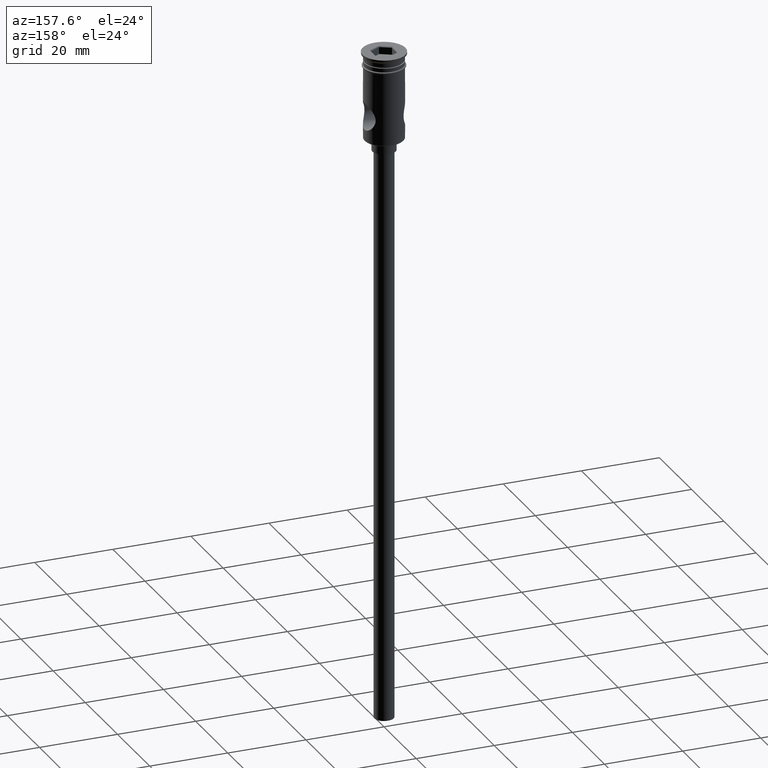
[diagram: clean part render]
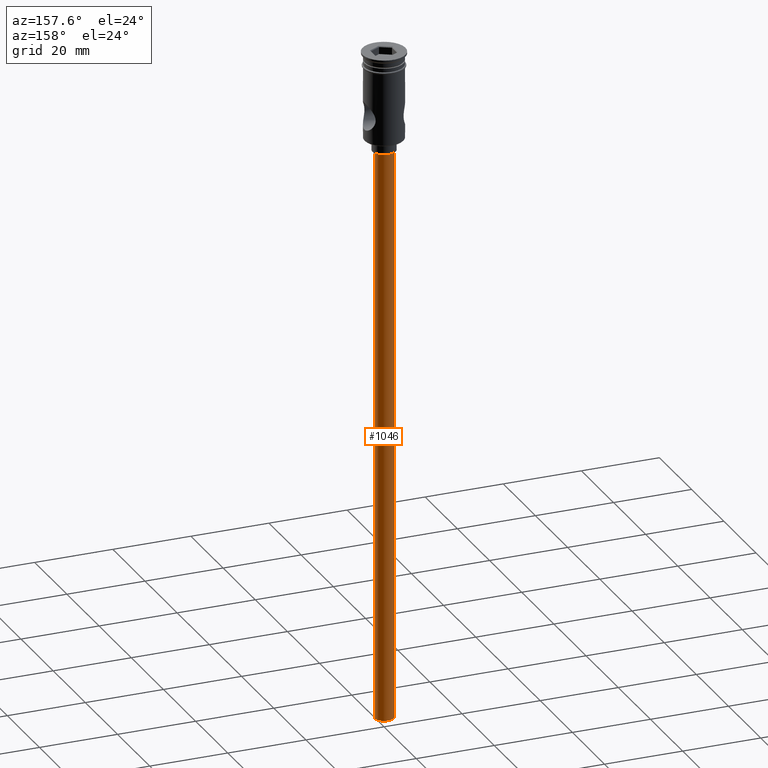
[diagram: same view with one face highlighted and labeled with its STEP entity id]
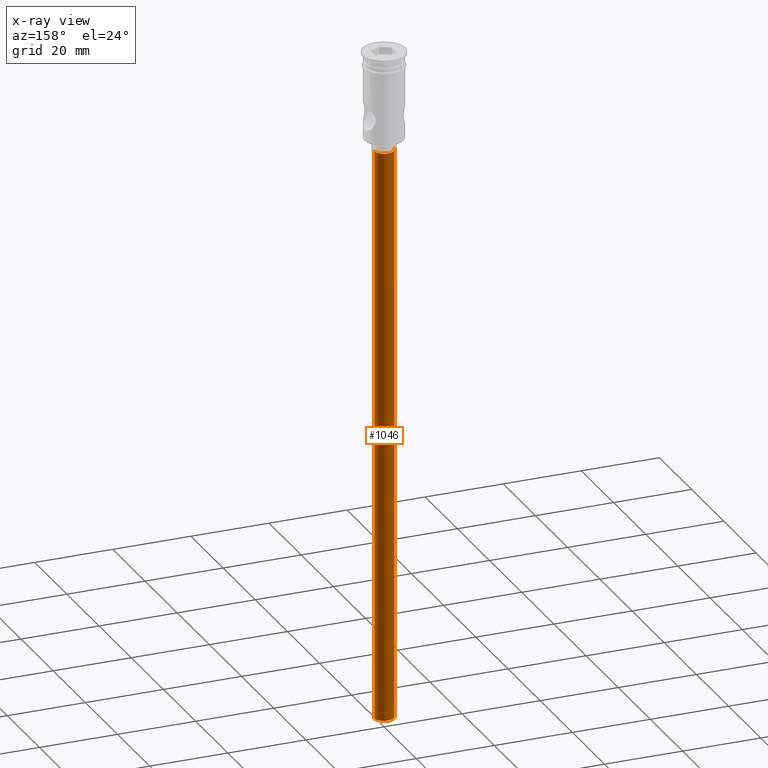
[diagram: x-ray of the same camera — body ghosted, the highlighted face saturated]
A machine part, auxiliary view. The second image highlights one B-rep face of the part: STEP entity #1046.
The next image is the same camera in x-ray: the body ghosted, the highlighted face saturated — about 0% of this face is hidden behind the body in this view.
In plain terms, the highlighted cylindrical surface (edge-blend (fillet) strip) has radius 2.5 mm, axis along (-0, -0, 1).
Its self-contained STEP definition (entity closure, byte-faithful):
#45 = CARTESIAN_POINT ( 'NONE',  ( 0.000000000000000000, 0.000000000000000000, -172.5000000000000000 ) ) ;
#51 = EDGE_CURVE ( 'NONE', #1454, #109, #305, .T. ) ;
#58 = ORIENTED_EDGE ( 'NONE', *, *, #401, .F. ) ;
#83 = DIRECTION ( 'NONE',  ( -0.000000000000000000, -0.000000000000000000, 1.000000000000000000 ) ) ;
#89 = CARTESIAN_POINT ( 'NONE',  ( 2.500000000000000000, 0.000000000000000000, -25.50000000000000000 ) ) ;
#95 = EDGE_CURVE ( 'NONE', #1424, #1454, #534, .T. ) ;
#109 = VERTEX_POINT ( 'NONE', #89 ) ;
#170 = DIRECTION ( 'NONE',  ( 0.000000000000000000, 0.000000000000000000, -1.000000000000000000 ) ) ;
#305 = CIRCLE ( 'NONE', #769, 2.500000000000000000 ) ;
#306 = DIRECTION ( 'NONE',  ( -1.000000000000000000, 0.000000000000000000, 0.000000000000000000 ) ) ;
#315 = DIRECTION ( 'NONE',  ( 0.000000000000000000, 0.000000000000000000, -1.000000000000000000 ) ) ;
#321 = AXIS2_PLACEMENT_3D ( 'NONE', #1105, #315, #306 ) ;
#353 = ORIENTED_EDGE ( 'NONE', *, *, #781, .F. ) ;
#400 = VECTOR ( 'NONE', #706, 1000.000000000000000 ) ;
#401 = EDGE_CURVE ( 'NONE', #536, #109, #1163, .T. ) ;
#478 = EDGE_LOOP ( 'NONE', ( #353, #1296, #1351, #58 ) ) ;
#484 = CARTESIAN_POINT ( 'NONE',  ( -2.500000000000000000, 3.061616997868383141E-16, -25.50000000000000000 ) ) ;
#508 = DIRECTION ( 'NONE',  ( -1.000000000000000000, 0.000000000000000000, 0.000000000000000000 ) ) ;
#534 = LINE ( 'NONE', #569, #1309 ) ;
#536 = VERTEX_POINT ( 'NONE', #1416 ) ;
#569 = CARTESIAN_POINT ( 'NONE',  ( -2.500000000000000000, 3.061616997868383141E-16, -172.5000000000000000 ) ) ;
#595 = DIRECTION ( 'NONE',  ( -0.000000000000000000, -0.000000000000000000, 1.000000000000000000 ) ) ;
#705 = FACE_OUTER_BOUND ( 'NONE', #478, .T. ) ;
#706 = DIRECTION ( 'NONE',  ( -0.000000000000000000, -0.000000000000000000, 1.000000000000000000 ) ) ;
#734 = CARTESIAN_POINT ( 'NONE',  ( 0.000000000000000000, 0.000000000000000000, -25.50000000000000000 ) ) ;
#769 = AXIS2_PLACEMENT_3D ( 'NONE', #734, #170, #508 ) ;
#781 = EDGE_CURVE ( 'NONE', #1424, #536, #955, .T. ) ;
#817 = CYLINDRICAL_SURFACE ( 'NONE', #1098, 2.500000000000000000 ) ;
#955 = CIRCLE ( 'NONE', #321, 2.500000000000000000 ) ;
#1036 = CARTESIAN_POINT ( 'NONE',  ( 2.500000000000000000, 0.000000000000000000, -172.5000000000000000 ) ) ;
#1046 = ADVANCED_FACE ( 'NONE', ( #705 ), #817, .T. ) ;
#1098 = AXIS2_PLACEMENT_3D ( 'NONE', #45, #595, #1161 ) ;
#1105 = CARTESIAN_POINT ( 'NONE',  ( 0.000000000000000000, 0.000000000000000000, -172.5000000000000000 ) ) ;
#1161 = DIRECTION ( 'NONE',  ( 1.000000000000000000, 0.000000000000000000, 0.000000000000000000 ) ) ;
#1163 = LINE ( 'NONE', #1036, #400 ) ;
#1280 = CARTESIAN_POINT ( 'NONE',  ( -2.500000000000000000, 3.061616997868383141E-16, -172.5000000000000000 ) ) ;
#1296 = ORIENTED_EDGE ( 'NONE', *, *, #95, .T. ) ;
#1309 = VECTOR ( 'NONE', #83, 1000.000000000000000 ) ;
#1351 = ORIENTED_EDGE ( 'NONE', *, *, #51, .T. ) ;
#1416 = CARTESIAN_POINT ( 'NONE',  ( 2.500000000000000000, 0.000000000000000000, -172.5000000000000000 ) ) ;
#1424 = VERTEX_POINT ( 'NONE', #1280 ) ;
#1454 = VERTEX_POINT ( 'NONE', #484 ) ;